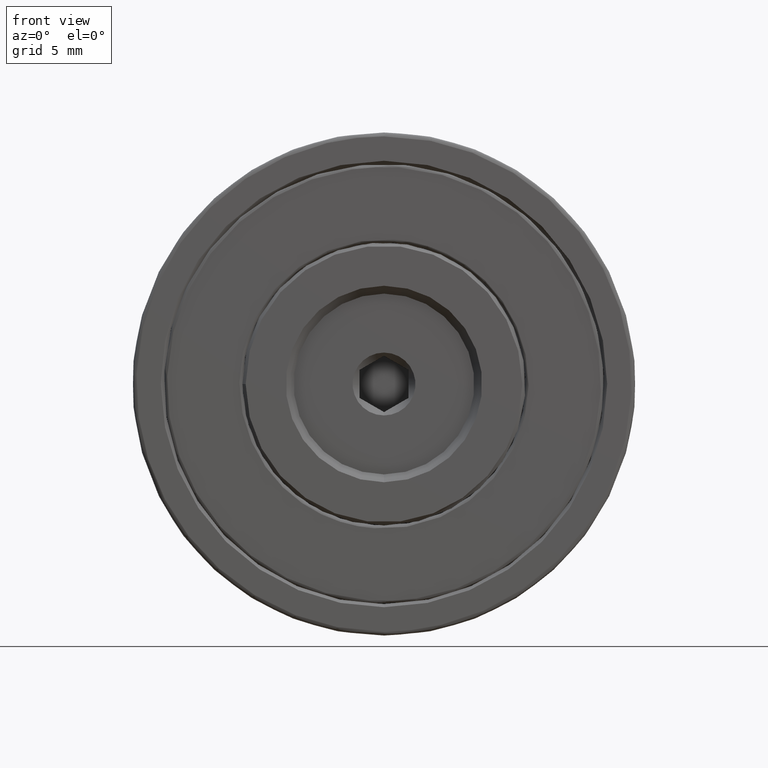
[diagram: clean part render]
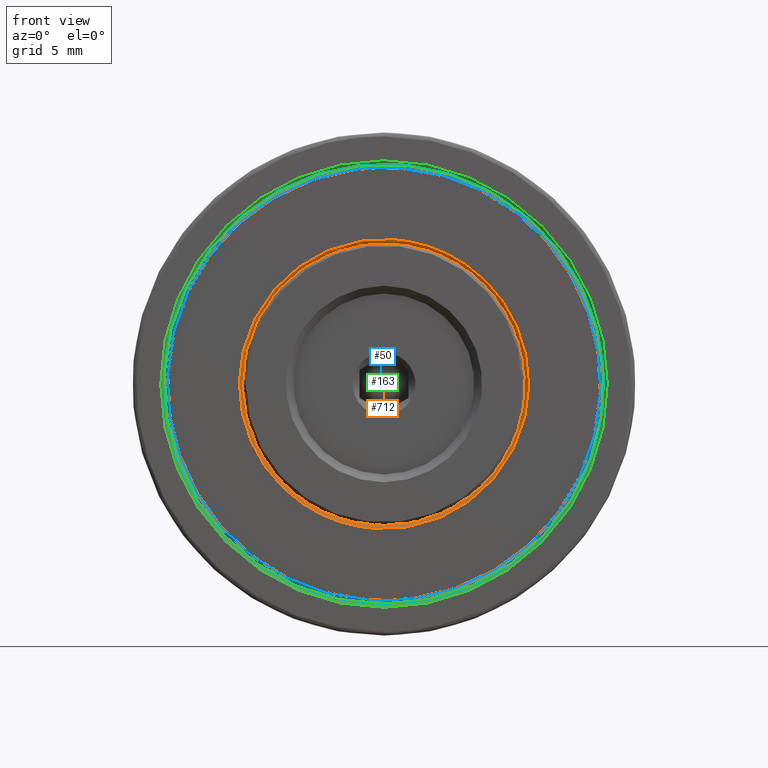
[diagram: same view with three faces highlighted in distinct colors, each labeled with its STEP entity id]
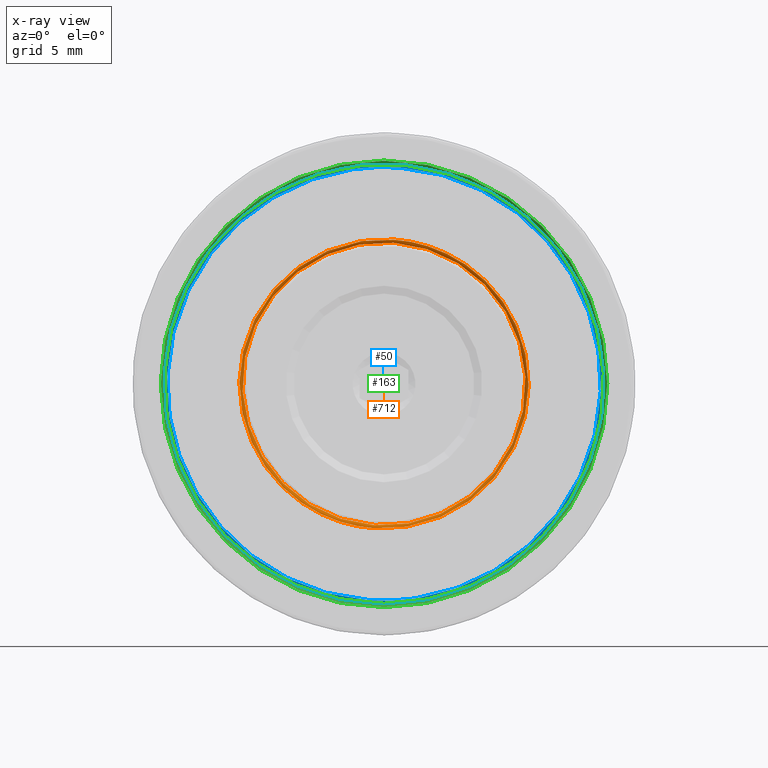
[diagram: x-ray of the same camera — body ghosted, the three highlighted faces saturated]
A machine part, front view with three faces highlighted in distinct colors.
The next image is the same camera in x-ray (body ghosted, the three faces saturated) — at least one of them is partly hidden behind the body in this view.
Their STEP definitions:

[orange] entity #712 — the highlighted face is a freeform B-spline surface patch.
#27 = AXIS2_PLACEMENT_3D ( 'NONE', #884, #780, #1072 ) ;
#28 = CARTESIAN_POINT ( 'NONE',  ( 17.14436299753712589, -5.001574736878457550, 21.55864803919497064 ) ) ;
#36 = CARTESIAN_POINT ( 'NONE',  ( -1.198506366865315975, -4.918732024403839276, 23.02122914137927268 ) ) ;
#39 = CARTESIAN_POINT ( 'NONE',  ( 0.05081765857194815716, -5.001574736878457550, 41.17829909992340731 ) ) ;
#42 = CARTESIAN_POINT ( 'NONE',  ( 0.03708882312758261801, -4.801574736878458260, 40.97877085862072022 ) ) ;
#84 = CARTESIAN_POINT ( 'NONE',  ( 0.05081765857194815716, -5.001574736878457550, 41.17829909992340731 ) ) ;
#99 = EDGE_LOOP ( 'NONE', ( #255, #811 ) ) ;
#130 = CARTESIAN_POINT ( 'NONE',  ( -19.32702936119145321, -5.001574736878457550, 24.18555036742144182 ) ) ;
#213 = CARTESIAN_POINT ( 'NONE',  ( -18.08006083152526600, -5.001574736878457550, 42.30838669191093260 ) ) ;
#217 = CARTESIAN_POINT ( 'NONE',  ( 17.99463054036902321, -4.801574736878458260, 39.74317566862782769 ) ) ;
#230 = CARTESIAN_POINT ( 'NONE',  ( 0.03708882312758261801, -4.801574736878458260, 40.97877085862072022 ) ) ;
#255 = ORIENTED_EDGE ( 'NONE', *, *, #623, .T. ) ;
#311 = CARTESIAN_POINT ( 'NONE',  ( 18.40741585841875860, -5.001574736878457550, 39.91524623904177815 ) ) ;
#313 = CARTESIAN_POINT ( 'NONE',  ( -1.212235202309680293, -5.001574736878457550, 22.82170090007659979 ) ) ;
#321 = CARTESIAN_POINT ( 'NONE',  ( 0.03708882312758261107, -4.918732024403839276, 40.97877085862072732 ) ) ;
#377 = CARTESIAN_POINT ( 'NONE',  ( -18.30578054127485998, -5.001574736878457550, 42.44135196080503647 ) ) ;
#398 = CARTESIAN_POINT ( 'NONE',  ( 0.03708882312758261107, -4.918732024403839276, 40.97877085862072732 ) ) ;
#409 = CARTESIAN_POINT ( 'NONE',  ( 18.40741585841875505, -5.001574736878457550, 39.91524623904177105 ) ) ;
#412 = CARTESIAN_POINT ( 'NONE',  ( 17.99463054036903742, -4.918732024403839276, 39.74317566862783480 ) ) ;
#416 = CARTESIAN_POINT ( 'NONE',  ( -17.92045289411387188, -4.918732024403839276, 42.21436604861362696 ) ) ;
#421 = FACE_OUTER_BOUND ( 'NONE', #517, .T. ) ;
#440 = CARTESIAN_POINT ( 'NONE',  ( 0.05081765857194815716, -5.001574736878457550, 41.17829909992340731 ) ) ;
#459 = EDGE_CURVE ( 'NONE', #1233, #1233, #1121, .T. ) ;
#461 =( BOUNDED_CURVE ( )  B_SPLINE_CURVE ( 3, ( #504, #28, #409, #39 ),
 .UNSPECIFIED., .F., .T. ) 
 B_SPLINE_CURVE_WITH_KNOTS ( ( 4, 4 ),
 ( 0.000000000000000000, 1.000000000000000000 ),
 .UNSPECIFIED. ) 
 CURVE ( )  GEOMETRIC_REPRESENTATION_ITEM ( )  RATIONAL_B_SPLINE_CURVE ( ( 1.000000000000000000, 0.3333333333333333703, 0.3333333333333333703, 1.000000000000000000 ) ) 
 REPRESENTATION_ITEM ( '' )  );
#495 = CARTESIAN_POINT ( 'NONE',  ( -19.56883340215648914, -5.001574736878457550, 24.08475376095822895 ) ) ;
#504 = CARTESIAN_POINT ( 'NONE',  ( -1.212235202309680293, -5.001574736878457550, 22.82170090007659979 ) ) ;
#506 = CARTESIAN_POINT ( 'NONE',  ( 0.04277549296422725883, -5.001574736878457550, 41.06141816224474184 ) ) ;
#512 = CARTESIAN_POINT ( 'NONE',  ( 18.16561181745372267, -5.001574736878457550, 39.81444963257855818 ) ) ;
#517 = EDGE_LOOP ( 'NONE', ( #611 ) ) ;
#524 = CARTESIAN_POINT ( 'NONE',  ( 17.14436299753712589, -5.001574736878457550, 21.55864803919496708 ) ) ;
#551 = CARTESIAN_POINT ( 'NONE',  ( 0.03708882312758259719, -4.801574736878458260, 40.97877085862071311 ) ) ;
#600 = CARTESIAN_POINT ( 'NONE',  ( -1.204193036701960429, -5.001574736878457550, 22.93858183775525461 ) ) ;
#611 = ORIENTED_EDGE ( 'NONE', *, *, #459, .T. ) ;
#623 = EDGE_CURVE ( 'NONE', #1083, #930, #933, .T. ) ;
#624 =( BOUNDED_SURFACE ( )  B_SPLINE_SURFACE ( 3, 3, ( 
 ( #1000, #311, #524, #909, #990, #914, #798 ),
 ( #699, #512, #1187, #600, #130, #213, #506 ),
 ( #398, #412, #1090, #36, #1196, #416, #321 ),
 ( #42, #217, #1007, #691, #711, #1101, #230 ) ),
 .UNSPECIFIED., .F., .T., .F. ) 
 B_SPLINE_SURFACE_WITH_KNOTS ( ( 4, 4 ),
 ( 4, 3, 4 ),
 ( 0.000000000000000000, 1.000000000000000000 ),
 ( 0.000000000000000000, 0.5000000000000000000, 1.000000000000000000 ),
 .UNSPECIFIED. ) 
 GEOMETRIC_REPRESENTATION_ITEM ( )  RATIONAL_B_SPLINE_SURFACE ( (
 ( 1.000000000000000000, 0.3333333333333333148, 0.3333333333333333148, 1.000000000000000000, 0.3333333333333333148, 0.3333333333333333148, 1.000000000000000000),
 ( 0.8047378541243649375, 0.2682459513747882940, 0.2682459513747882940, 0.8047378541243649375, 0.2682459513747882940, 0.2682459513747882940, 0.8047378541243649375),
 ( 0.8047378541243649375, 0.2682459513747882940, 0.2682459513747882940, 0.8047378541243649375, 0.2682459513747882940, 0.2682459513747882940, 0.8047378541243649375),
 ( 1.000000000000000000, 0.3333333333333333148, 0.3333333333333333148, 1.000000000000000000, 0.3333333333333333148, 0.3333333333333333148, 1.000000000000000000) ) ) 
 REPRESENTATION_ITEM ( '' )  SURFACE ( )  );
#691 = CARTESIAN_POINT ( 'NONE',  ( -1.198506366865315975, -4.801574736878458260, 23.02122914137927978 ) ) ;
#699 = CARTESIAN_POINT ( 'NONE',  ( 0.04277549296422725883, -5.001574736878457550, 41.06141816224474184 ) ) ;
#711 = CARTESIAN_POINT ( 'NONE',  ( -19.15604808410675020, -4.801574736878458260, 24.25682433137217586 ) ) ;
#712 = ADVANCED_FACE ( 'NONE', ( #1085, #421 ), #624, .T. ) ;
#771 = CARTESIAN_POINT ( 'NONE',  ( -1.212235202309680293, -5.001574736878457550, 22.82170090007659979 ) ) ;
#780 = DIRECTION ( 'NONE',  ( 0.000000000000000000, 1.000000000000000000, 0.000000000000000000 ) ) ;
#798 = CARTESIAN_POINT ( 'NONE',  ( 0.05081765857194815716, -5.001574736878457550, 41.17829909992340731 ) ) ;
#811 = ORIENTED_EDGE ( 'NONE', *, *, #935, .T. ) ;
#884 = CARTESIAN_POINT ( 'NONE',  ( -0.5807087718688666023, -4.801574736878458260, 32.00000000000000000 ) ) ;
#909 = CARTESIAN_POINT ( 'NONE',  ( -1.212235202309681403, -5.001574736878457550, 22.82170090007659624 ) ) ;
#914 = CARTESIAN_POINT ( 'NONE',  ( -18.30578054127485998, -5.001574736878457550, 42.44135196080502936 ) ) ;
#930 = VERTEX_POINT ( 'NONE', #313 ) ;
#933 =( BOUNDED_CURVE ( )  B_SPLINE_CURVE ( 3, ( #84, #377, #495, #771 ),
 .UNSPECIFIED., .F., .T. ) 
 B_SPLINE_CURVE_WITH_KNOTS ( ( 4, 4 ),
 ( 0.000000000000000000, 1.000000000000000000 ),
 .UNSPECIFIED. ) 
 CURVE ( )  GEOMETRIC_REPRESENTATION_ITEM ( )  RATIONAL_B_SPLINE_CURVE ( ( 1.000000000000000000, 0.3333333333333333703, 0.3333333333333333703, 1.000000000000000000 ) ) 
 REPRESENTATION_ITEM ( '' )  );
#935 = EDGE_CURVE ( 'NONE', #930, #1083, #461, .T. ) ;
#990 = CARTESIAN_POINT ( 'NONE',  ( -19.56883340215648914, -5.001574736878457550, 24.08475376095822185 ) ) ;
#1000 = CARTESIAN_POINT ( 'NONE',  ( 0.05081765857194815716, -5.001574736878457550, 41.17829909992340731 ) ) ;
#1007 = CARTESIAN_POINT ( 'NONE',  ( 16.75903535037612713, -4.801574736878458260, 21.78563395138638015 ) ) ;
#1072 = DIRECTION ( 'NONE',  ( 0.06864417722182772352, 0.000000000000000000, 0.9976412065134129259 ) ) ;
#1083 = VERTEX_POINT ( 'NONE', #440 ) ;
#1085 = FACE_OUTER_BOUND ( 'NONE', #99, .T. ) ;
#1090 = CARTESIAN_POINT ( 'NONE',  ( 16.75903535037614134, -4.918732024403839276, 21.78563395138637304 ) ) ;
#1101 = CARTESIAN_POINT ( 'NONE',  ( -17.92045289411386122, -4.801574736878458260, 42.21436604861361275 ) ) ;
#1121 = CIRCLE ( 'NONE', #27, 8.999999999999996447 ) ;
#1187 = CARTESIAN_POINT ( 'NONE',  ( 16.91864328778753190, -5.001574736878457550, 21.69161330808906385 ) ) ;
#1196 = CARTESIAN_POINT ( 'NONE',  ( -19.15604808410676796, -4.918732024403839276, 24.25682433137216876 ) ) ;
#1233 = VERTEX_POINT ( 'NONE', #551 ) ;

[blue] entity #50 — the highlighted face is a freeform B-spline surface patch.
#4 = VERTEX_POINT ( 'NONE', #63 ) ;
#50 = ADVANCED_FACE ( 'NONE', ( #559, #369 ), #1234, .T. ) ;
#63 = CARTESIAN_POINT ( 'NONE',  ( -1.527998417530087361, -5.001574736878457550, 18.23255135011489969 ) ) ;
#67 = CIRCLE ( 'NONE', #1022, 14.00000000000000000 ) ;
#81 = CARTESIAN_POINT ( 'NONE',  ( -29.47568103535001782, -4.801574736878458260, 19.95506007102338941 ) ) ;
#103 = CARTESIAN_POINT ( 'NONE',  ( 26.39222652940111047, -4.918732024403839276, 16.11098614660104644 ) ) ;
#131 = CARTESIAN_POINT ( 'NONE',  ( -1.527998417530087361, -5.001574736878457550, 18.23255135011489969 ) ) ;
#152 = CARTESIAN_POINT ( 'NONE',  ( 27.90147817356255544, -5.001574736878457550, 43.87286935856265302 ) ) ;
#164 = CARTESIAN_POINT ( 'NONE',  ( -1.527998417530087361, -5.001574736878457550, 18.23255135011489969 ) ) ;
#171 = CARTESIAN_POINT ( 'NONE',  ( 0.3746230394000764630, -5.001574736878457550, 45.88432958756374802 ) ) ;
#173 = EDGE_LOOP ( 'NONE', ( #797, #441 ) ) ;
#218 = EDGE_CURVE ( 'NONE', #4, #310, #414, .T. ) ;
#232 = DIRECTION ( 'NONE',  ( 0.06864417722182769577, 0.000000000000000000, 0.9976412065134130369 ) ) ;
#268 = CARTESIAN_POINT ( 'NONE',  ( 0.3665808737923555438, -5.001574736878457550, 45.76744864988509676 ) ) ;
#289 = CARTESIAN_POINT ( 'NONE',  ( 26.39222652940110692, -4.801574736878458260, 16.11098614660104644 ) ) ;
#310 = VERTEX_POINT ( 'NONE', #731 ) ;
#337 = CARTESIAN_POINT ( 'NONE',  ( -0.5807087718688666023, -4.801574736878458260, 32.00000000000000000 ) ) ;
#353 = CARTESIAN_POINT ( 'NONE',  ( 0.3803097092367211385, -4.801574736878458260, 45.96697689118778385 ) ) ;
#369 = FACE_OUTER_BOUND ( 'NONE', #1195, .T. ) ;
#371 = ORIENTED_EDGE ( 'NONE', *, *, #1139, .T. ) ;
#380 = CARTESIAN_POINT ( 'NONE',  ( -29.06289571730028953, -5.001574736878457550, 20.12713064143734698 ) ) ;
#414 =( BOUNDED_CURVE ( )  B_SPLINE_CURVE ( 3, ( #131, #1116, #911, #418 ),
 .UNSPECIFIED., .F., .T. ) 
 B_SPLINE_CURVE_WITH_KNOTS ( ( 4, 4 ),
 ( 0.000000000000000000, 1.000000000000000000 ),
 .UNSPECIFIED. ) 
 CURVE ( )  GEOMETRIC_REPRESENTATION_ITEM ( )  RATIONAL_B_SPLINE_CURVE ( ( 1.000000000000000000, 0.3333333333333333703, 0.3333333333333333703, 1.000000000000000000 ) ) 
 REPRESENTATION_ITEM ( '' )  );
#418 = CARTESIAN_POINT ( 'NONE',  ( 0.3665808737923556548, -5.001574736878457550, 45.76744864988510386 ) ) ;
#441 = ORIENTED_EDGE ( 'NONE', *, *, #218, .T. ) ;
#464 = CARTESIAN_POINT ( 'NONE',  ( -29.47568103535001782, -4.918732024403839276, 19.95506007102339296 ) ) ;
#472 = CARTESIAN_POINT ( 'NONE',  ( 28.14328221452759138, -5.001574736878457550, 43.97366596502587299 ) ) ;
#479 = CARTESIAN_POINT ( 'NONE',  ( 0.3803097092367211385, -4.801574736878458260, 45.96697689118778385 ) ) ;
#485 = CARTESIAN_POINT ( 'NONE',  ( 27.90147817356255189, -5.001574736878457550, 43.87286935856266012 ) ) ;
#553 = CARTESIAN_POINT ( 'NONE',  ( -29.30469975826532192, -5.001574736878457550, 20.02633403497413056 ) ) ;
#559 = FACE_OUTER_BOUND ( 'NONE', #173, .T. ) ;
#566 = CARTESIAN_POINT ( 'NONE',  ( -27.55364407313884456, -4.801574736878458260, 47.88901385339895711 ) ) ;
#660 = CARTESIAN_POINT ( 'NONE',  ( 0.3803097092367211385, -4.918732024403839276, 45.96697689118778385 ) ) ;
#667 = CARTESIAN_POINT ( 'NONE',  ( -1.541727252974453899, -4.918732024403839276, 18.03302310881221615 ) ) ;
#675 =( BOUNDED_CURVE ( )  B_SPLINE_CURVE ( 3, ( #739, #152, #1227, #164 ),
 .UNSPECIFIED., .F., .T. ) 
 B_SPLINE_CURVE_WITH_KNOTS ( ( 4, 4 ),
 ( 0.000000000000000000, 1.000000000000000000 ),
 .UNSPECIFIED. ) 
 CURVE ( )  GEOMETRIC_REPRESENTATION_ITEM ( )  RATIONAL_B_SPLINE_CURVE ( ( 1.000000000000000000, 0.3333333333333333703, 0.3333333333333333703, 1.000000000000000000 ) ) 
 REPRESENTATION_ITEM ( '' )  );
#731 = CARTESIAN_POINT ( 'NONE',  ( 0.3665808737923556548, -5.001574736878457550, 45.76744864988510386 ) ) ;
#739 = CARTESIAN_POINT ( 'NONE',  ( 0.3665808737923556548, -5.001574736878457550, 45.76744864988510386 ) ) ;
#745 = CARTESIAN_POINT ( 'NONE',  ( 26.23261859198969859, -5.001574736878457550, 16.20500678989835919 ) ) ;
#758 = VERTEX_POINT ( 'NONE', #974 ) ;
#774 = CARTESIAN_POINT ( 'NONE',  ( 0.3803097092367211385, -4.918732024403839276, 45.96697689118778385 ) ) ;
#797 = ORIENTED_EDGE ( 'NONE', *, *, #991, .T. ) ;
#858 = CARTESIAN_POINT ( 'NONE',  ( -1.541727252974454343, -4.801574736878458260, 18.03302310881221970 ) ) ;
#866 = CARTESIAN_POINT ( 'NONE',  ( 26.00689888224010460, -5.001574736878457550, 16.33797205879245595 ) ) ;
#870 = CARTESIAN_POINT ( 'NONE',  ( -27.55364407313884456, -4.918732024403839276, 47.88901385339895711 ) ) ;
#911 = CARTESIAN_POINT ( 'NONE',  ( -27.16831642597784580, -5.001574736878457550, 47.66202794120755470 ) ) ;
#929 = DIRECTION ( 'NONE',  ( -0.000000000000000000, -1.000000000000000000, -0.000000000000000000 ) ) ;
#950 = CARTESIAN_POINT ( 'NONE',  ( -1.527998417530088915, -5.001574736878457550, 18.23255135011490324 ) ) ;
#956 = CARTESIAN_POINT ( 'NONE',  ( 28.31426349161228728, -4.801574736878458260, 44.04493992897661059 ) ) ;
#969 = CARTESIAN_POINT ( 'NONE',  ( -27.39403613572743268, -5.001574736878457550, 47.79499321010163726 ) ) ;
#974 = CARTESIAN_POINT ( 'NONE',  ( 0.3803097092367211385, -4.801574736878458260, 45.96697689118778385 ) ) ;
#991 = EDGE_CURVE ( 'NONE', #310, #4, #675, .T. ) ;
#1022 = AXIS2_PLACEMENT_3D ( 'NONE', #337, #929, #232 ) ;
#1062 = CARTESIAN_POINT ( 'NONE',  ( 0.3746230394000764630, -5.001574736878457550, 45.88432958756374802 ) ) ;
#1116 = CARTESIAN_POINT ( 'NONE',  ( -29.06289571730028598, -5.001574736878457550, 20.12713064143734343 ) ) ;
#1139 = EDGE_CURVE ( 'NONE', #758, #758, #67, .T. ) ;
#1143 = CARTESIAN_POINT ( 'NONE',  ( -27.16831642597783869, -5.001574736878457550, 47.66202794120754760 ) ) ;
#1164 = CARTESIAN_POINT ( 'NONE',  ( 0.3665808737923555438, -5.001574736878457550, 45.76744864988509676 ) ) ;
#1195 = EDGE_LOOP ( 'NONE', ( #371 ) ) ;
#1227 = CARTESIAN_POINT ( 'NONE',  ( 26.00689888224011170, -5.001574736878457550, 16.33797205879245951 ) ) ;
#1228 = CARTESIAN_POINT ( 'NONE',  ( 28.31426349161228373, -4.918732024403839276, 44.04493992897661059 ) ) ;
#1234 =( BOUNDED_SURFACE ( )  B_SPLINE_SURFACE ( 3, 3, ( 
 ( #479, #956, #289, #858, #81, #566, #353 ),
 ( #660, #1228, #103, #667, #464, #870, #774 ),
 ( #171, #472, #745, #1242, #553, #969, #1062 ),
 ( #268, #485, #866, #950, #380, #1143, #1164 ) ),
 .UNSPECIFIED., .F., .T., .T. ) 
 B_SPLINE_SURFACE_WITH_KNOTS ( ( 4, 4 ),
 ( 4, 3, 4 ),
 ( 0.000000000000000000, 1.000000000000000000 ),
 ( 0.000000000000000000, 0.5000000000000000000, 1.000000000000000000 ),
 .UNSPECIFIED. ) 
 GEOMETRIC_REPRESENTATION_ITEM ( )  RATIONAL_B_SPLINE_SURFACE ( (
 ( 1.000000000000000000, 0.3333333333333333148, 0.3333333333333333148, 1.000000000000000000, 0.3333333333333333148, 0.3333333333333333148, 1.000000000000000000),
 ( 0.8047378541243649375, 0.2682459513747882940, 0.2682459513747882940, 0.8047378541243649375, 0.2682459513747882940, 0.2682459513747882940, 0.8047378541243649375),
 ( 0.8047378541243649375, 0.2682459513747882940, 0.2682459513747882940, 0.8047378541243649375, 0.2682459513747882940, 0.2682459513747882940, 0.8047378541243649375),
 ( 1.000000000000000000, 0.3333333333333333148, 0.3333333333333333148, 1.000000000000000000, 0.3333333333333333148, 0.3333333333333333148, 1.000000000000000000) ) ) 
 REPRESENTATION_ITEM ( '' )  SURFACE ( )  );
#1242 = CARTESIAN_POINT ( 'NONE',  ( -1.536040583137809445, -5.001574736878457550, 18.11567041243624843 ) ) ;

[green] entity #163 — the highlighted conical surface has half-angle 45 deg.
#1 = CARTESIAN_POINT ( 'NONE',  ( -0.5807087718688666023, -5.151574736878457905, 17.79999999999999716 ) ) ;
#89 = DIRECTION ( 'NONE',  ( 0.000000000000000000, 6.195440985631454085E-17, -1.000000000000000000 ) ) ;
#138 = DIRECTION ( 'NONE',  ( 0.000000000000000000, -1.000000000000000000, 0.000000000000000000 ) ) ;
#143 = DIRECTION ( 'NONE',  ( 0.000000000000000000, 0.000000000000000000, -1.000000000000000000 ) ) ;
#163 = ADVANCED_FACE ( 'NONE', ( #514, #1111 ), #166, .F. ) ;
#166 = CONICAL_SURFACE ( 'NONE', #589, 14.20000000000000462, 0.7853981633974657095 ) ;
#187 = AXIS2_PLACEMENT_3D ( 'NONE', #1225, #1214, #1238 ) ;
#236 = DIRECTION ( 'NONE',  ( 0.000000000000000000, -1.000000000000000000, 0.000000000000000000 ) ) ;
#383 = ORIENTED_EDGE ( 'NONE', *, *, #1239, .F. ) ;
#496 = EDGE_CURVE ( 'NONE', #1248, #1248, #732, .T. ) ;
#514 = FACE_OUTER_BOUND ( 'NONE', #901, .T. ) ;
#576 = ORIENTED_EDGE ( 'NONE', *, *, #496, .T. ) ;
#589 = AXIS2_PLACEMENT_3D ( 'NONE', #1106, #236, #143 ) ;
#591 = AXIS2_PLACEMENT_3D ( 'NONE', #844, #138, #89 ) ;
#676 = VERTEX_POINT ( 'NONE', #865 ) ;
#732 = CIRCLE ( 'NONE', #187, 14.20000000000000462 ) ;
#844 = CARTESIAN_POINT ( 'NONE',  ( -0.5807087718688666023, -4.951574736878460392, 32.00000000000000000 ) ) ;
#860 = CIRCLE ( 'NONE', #591, 13.99999999999999822 ) ;
#865 = CARTESIAN_POINT ( 'NONE',  ( -0.5807087718688666023, -4.951574736878459504, 18.00000000000000355 ) ) ;
#901 = EDGE_LOOP ( 'NONE', ( #576 ) ) ;
#1100 = EDGE_LOOP ( 'NONE', ( #383 ) ) ;
#1106 = CARTESIAN_POINT ( 'NONE',  ( -0.5807087718688666023, -5.151574736878457905, 32.00000000000000000 ) ) ;
#1111 = FACE_BOUND ( 'NONE', #1100, .T. ) ;
#1214 = DIRECTION ( 'NONE',  ( 0.000000000000000000, -1.000000000000000000, 0.000000000000000000 ) ) ;
#1225 = CARTESIAN_POINT ( 'NONE',  ( -0.5807087718688666023, -5.151574736878457905, 32.00000000000000000 ) ) ;
#1238 = DIRECTION ( 'NONE',  ( 0.000000000000000000, 0.000000000000000000, -1.000000000000000000 ) ) ;
#1239 = EDGE_CURVE ( 'NONE', #676, #676, #860, .T. ) ;
#1248 = VERTEX_POINT ( 'NONE', #1 ) ;